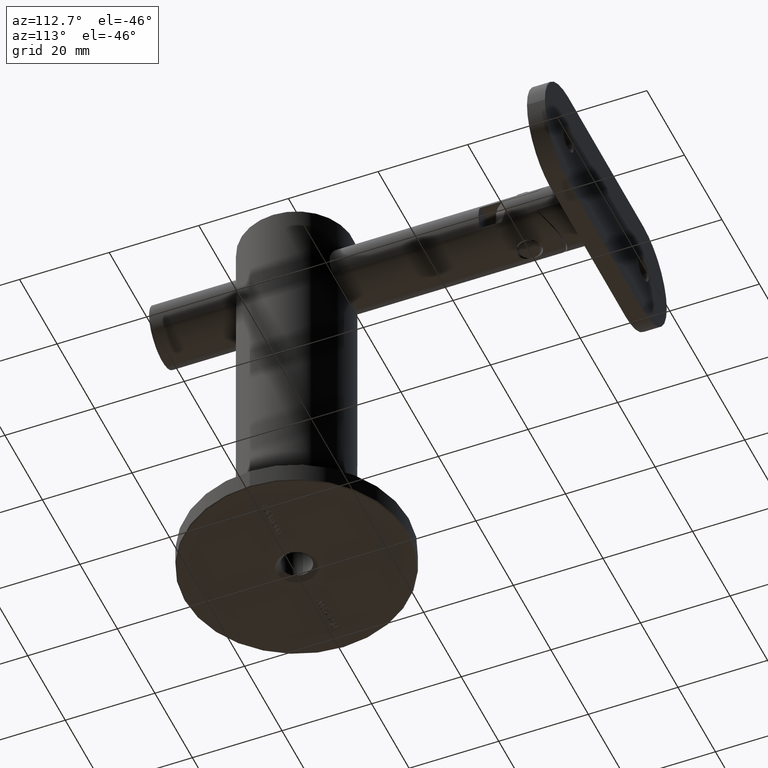
[diagram: clean part render]
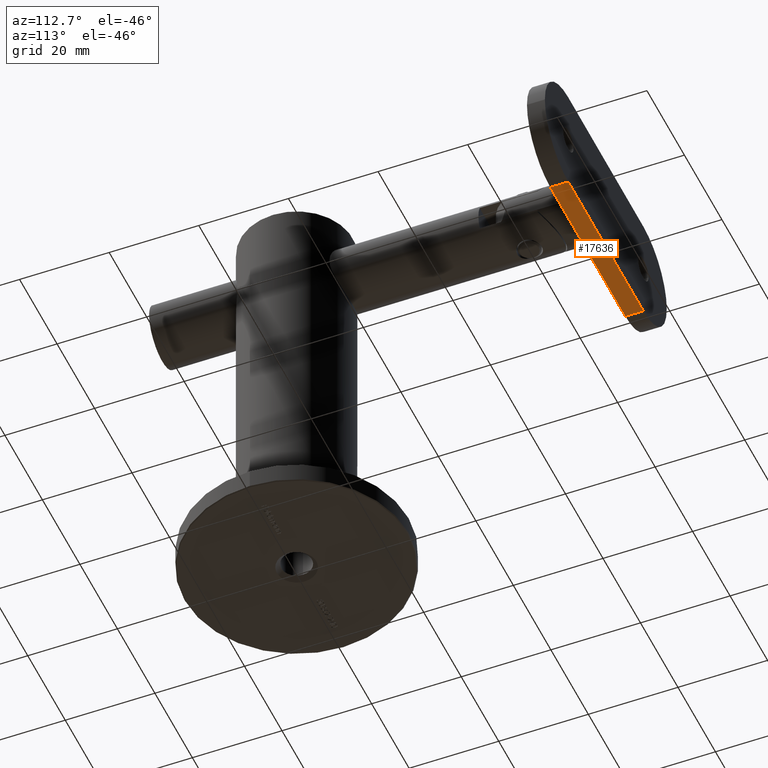
[diagram: same view with one face highlighted and labeled with its STEP entity id]
A machine part, auxiliary view. The second image highlights one B-rep face of the part: STEP entity #17636.
In plain terms, the highlighted planar face has unit normal (-0, -0, 1).
Its self-contained STEP definition (entity closure, byte-faithful):
#1210 = LINE ( 'NONE', #15294, #18537 ) ;
#2546 = AXIS2_PLACEMENT_3D ( 'NONE', #17264, #13077, #3913 ) ;
#2910 = EDGE_LOOP ( 'NONE', ( #14451, #8757, #8477, #11020 ) ) ;
#3617 = CARTESIAN_POINT ( 'NONE',  ( -12.50000000000000000, -3.370833141065685400E-015, 32.50000000000000000 ) ) ;
#3913 = DIRECTION ( 'NONE',  ( -0.0000000000000000000, 0.0000000000000000000, -1.000000000000000000 ) ) ;
#4190 = CARTESIAN_POINT ( 'NONE',  ( -12.50000000000000000, -3.370833141065685400E-015, -20.00000000000000400 ) ) ;
#4465 = CARTESIAN_POINT ( 'NONE',  ( -12.50000000000000000, 3.999999999999996400, -20.00000000000000400 ) ) ;
#4806 = EDGE_CURVE ( 'NONE', #19440, #6577, #9236, .T. ) ;
#4906 = VERTEX_POINT ( 'NONE', #4465 ) ;
#5063 = CARTESIAN_POINT ( 'NONE',  ( -12.50000000000000000, 3.999999999999996400, 32.50000000000000000 ) ) ;
#5109 = DIRECTION ( 'NONE',  ( -0.0000000000000000000, -0.0000000000000000000, -1.000000000000000000 ) ) ;
#6087 = EDGE_CURVE ( 'NONE', #19440, #12525, #9451, .T. ) ;
#6571 = DIRECTION ( 'NONE',  ( -0.0000000000000000000, -0.0000000000000000000, -1.000000000000000000 ) ) ;
#6577 = VERTEX_POINT ( 'NONE', #17777 ) ;
#7948 = DIRECTION ( 'NONE',  ( 0.0000000000000000000, -1.000000000000000000, 0.0000000000000000000 ) ) ;
#8477 = ORIENTED_EDGE ( 'NONE', *, *, #6087, .F. ) ;
#8757 = ORIENTED_EDGE ( 'NONE', *, *, #8828, .T. ) ;
#8828 = EDGE_CURVE ( 'NONE', #4906, #12525, #1210, .T. ) ;
#9236 = LINE ( 'NONE', #10268, #14875 ) ;
#9451 = LINE ( 'NONE', #3617, #12728 ) ;
#10268 = CARTESIAN_POINT ( 'NONE',  ( -12.50000000000000000, 3.999999999999996400, 20.00000000000000000 ) ) ;
#10455 = EDGE_CURVE ( 'NONE', #6577, #4906, #17872, .T. ) ;
#10807 = CARTESIAN_POINT ( 'NONE',  ( -12.50000000000000000, -3.370833141065685400E-015, 20.00000000000000000 ) ) ;
#10975 = FACE_OUTER_BOUND ( 'NONE', #2910, .T. ) ;
#11020 = ORIENTED_EDGE ( 'NONE', *, *, #4806, .T. ) ;
#12525 = VERTEX_POINT ( 'NONE', #4190 ) ;
#12686 = PLANE ( 'NONE',  #2546 ) ;
#12728 = VECTOR ( 'NONE', #5109, 1000.000000000000000 ) ;
#13077 = DIRECTION ( 'NONE',  ( 1.000000000000000000, 0.0000000000000000000, -0.0000000000000000000 ) ) ;
#14451 = ORIENTED_EDGE ( 'NONE', *, *, #10455, .T. ) ;
#14875 = VECTOR ( 'NONE', #15008, 1000.000000000000000 ) ;
#15008 = DIRECTION ( 'NONE',  ( -0.0000000000000000000, 1.000000000000000000, -0.0000000000000000000 ) ) ;
#15294 = CARTESIAN_POINT ( 'NONE',  ( -12.50000000000000000, -3.469446951953614200E-015, -20.00000000000000400 ) ) ;
#15780 = VECTOR ( 'NONE', #6571, 1000.000000000000000 ) ;
#17264 = CARTESIAN_POINT ( 'NONE',  ( -12.50000000000000000, 3.999999999999996400, 32.50000000000000000 ) ) ;
#17636 = ADVANCED_FACE ( 'NONE', ( #10975 ), #12686, .F. ) ;
#17777 = CARTESIAN_POINT ( 'NONE',  ( -12.50000000000000000, 3.999999999999996400, 20.00000000000000000 ) ) ;
#17872 = LINE ( 'NONE', #5063, #15780 ) ;
#18537 = VECTOR ( 'NONE', #7948, 1000.000000000000000 ) ;
#19440 = VERTEX_POINT ( 'NONE', #10807 ) ;